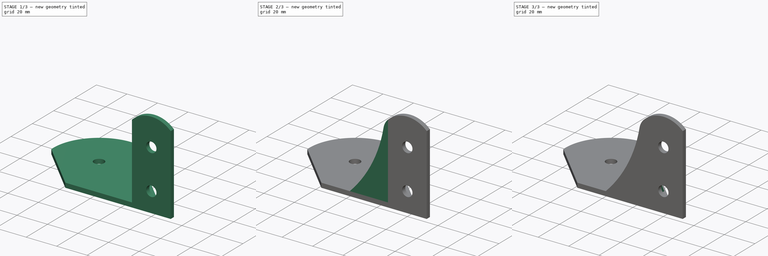
[diagram: build sequence overview — one tinted view per stage of 3, left to right]
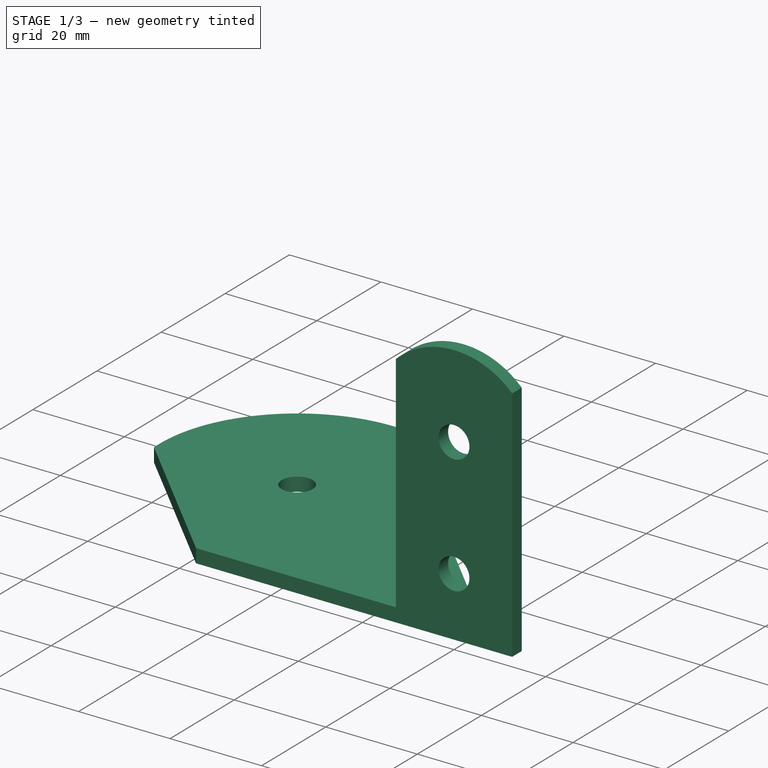
[diagram: stage 1 of 3 — iso view after this stage's code; geometry added in this stage tinted green]
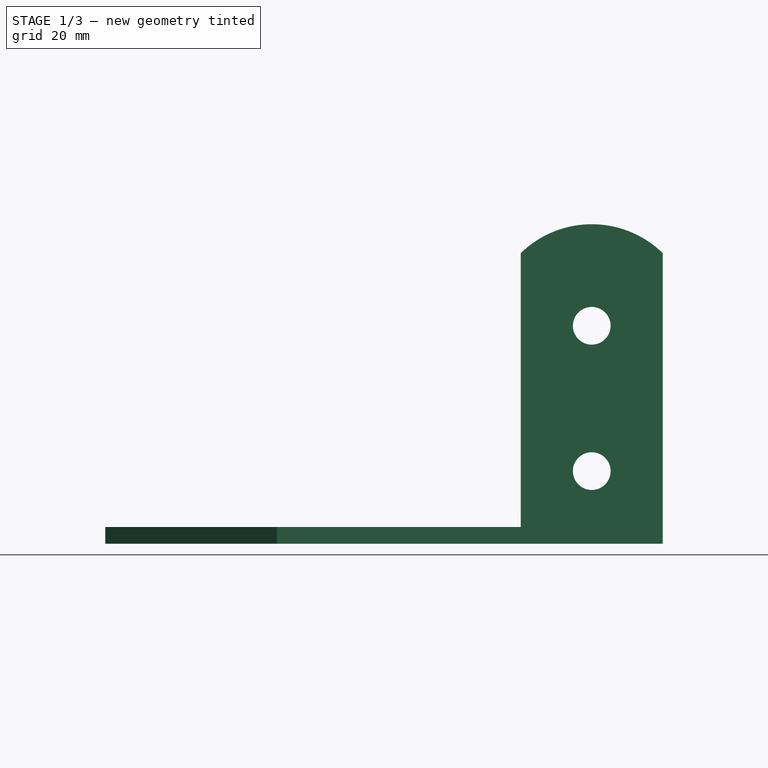
[diagram: stage 1 of 3 — front view after this stage's code; geometry added in this stage tinted green]
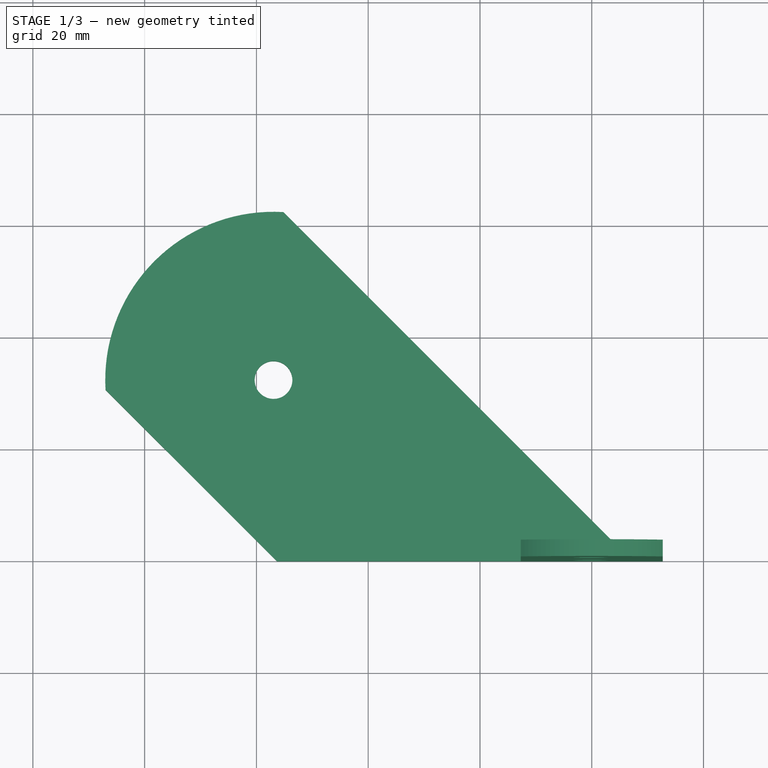
[diagram: stage 1 of 3 — top view after this stage's code; geometry added in this stage tinted green]
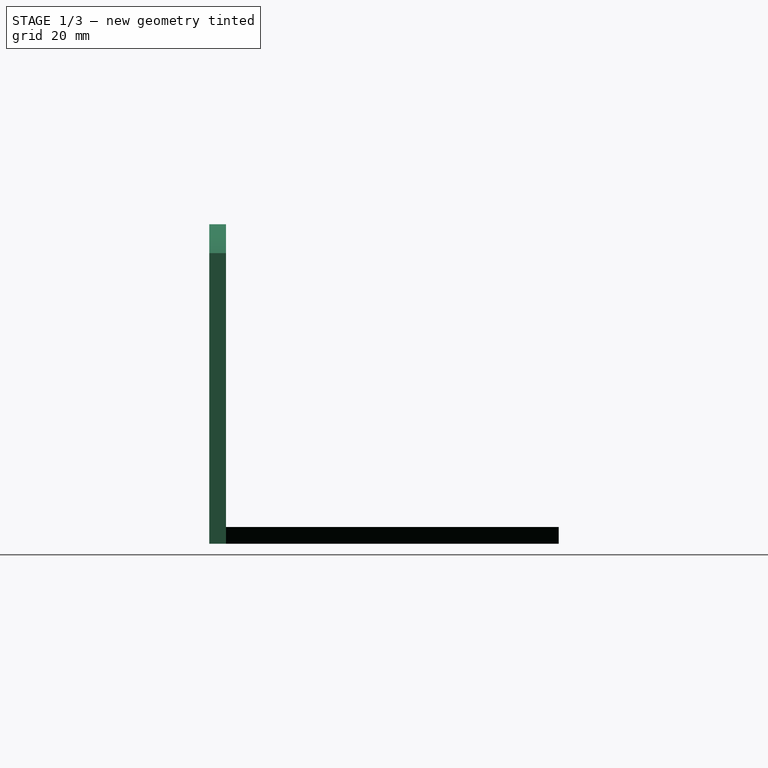
[diagram: stage 1 of 3 — right view after this stage's code; geometry added in this stage tinted green]
FCSTD DOCUMENT  (FreeCAD 0.22R38553 (Git))
Label: webcam_holder
License: All rights reserved
LicenseURL: http://en.wikipedia.org/wiki/All_rights_reserved
objects: Sketcher::SketchObject×5, PartDesign::Pad×5, PartDesign::Body×1
note: 26 computed .brp shape members not serialized (recipe doc carries the construction recipe); baked Part::Feature solids carry a one-line shape summary decoded from their .brp

FEATURE [Sketcher::SketchObject] Sketch
  ArcFitTolerance = 1e-06
  AttachmentSupport = -> [XZ_Plane]
  FullyConstrained = true
  MakeInternals = false
  MapMode = 5
  Placement = pos=(0,0,0) rot=(1,0,0;1.5708rad)
  sketch-geometry (8):
    g0: LineSegment StartX=-12.7 StartY=0 StartZ=0 EndX=12.7 EndY=0 EndZ=0
    g1: LineSegment StartX=12.7 StartY=0 StartZ=0 EndX=12.7 EndY=52 EndZ=0
    g2: LineSegment StartX=-12.7 StartY=52 StartZ=0 EndX=-12.7 EndY=0 EndZ=0
    g3: Circle CenterX=-5e-16 CenterY=39 CenterZ=0 NormalX=0 NormalY=0 NormalZ=1 AngleXU=0 Radius=3.375
    g4: Circle CenterX=0 CenterY=13 CenterZ=0 NormalX=0 NormalY=0 NormalZ=1 AngleXU=0 Radius=3.375
    g5: LineSegment [constr] StartX=-5e-16 StartY=39 StartZ=0 EndX=0 EndY=52 EndZ=0
    g6: LineSegment [constr] StartX=0 StartY=13 StartZ=0 EndX=0 EndY=0 EndZ=0
    g7: ArcOfCircle CenterX=-5e-16 CenterY=39 CenterZ=0 NormalX=0 NormalY=0 NormalZ=1 AngleXU=0 Radius=18.1739 StartAngle=0.797071 EndAngle=2.34452
  constraints (21):
    c: Coincident(g0,g1)
    c: Coincident(g2,g0)
    c: Horizontal(g0)
    c: Vertical(g1)
    c: Vertical(g2)
    c: PointOnObject(g0,g-1)
    c: DistanceY(g1,g1) = 52
    c: DistanceX(g2,g1) = 25.4
    c: Symmetric(g2,g1,g-2)
    c: PointOnObject(g4,g-2)
    c: Equal(g3,g4)
    c: Diameter(g3) = 6.75
    c: DistanceY(g4,g3) = 26
    c: Coincident(g5,g3)
    c: Symmetric(g1,g2,g5)
    c: Coincident(g6,g4)
    c: Coincident(g6,g-1)
    c: Equal(g5,g6)
    c: Coincident(g7,g2)
    c: Coincident(g7,g1)
    c: Coincident(g7,g3)
FEATURE [PartDesign::Pad] Pad
  Direction = (0,-1,2e-16)
  Length = 3
  Length2 = 10
  Placement = pos=(0,0,0) rot=(1,0,0;1.5708rad)
  Profile = -> Sketch
  ReferenceAxis = -> Sketch [N_Axis]
  Reversed = true
  Suppressed = false
  Type = 0
FEATURE [Sketcher::SketchObject] Sketch001
  ArcFitTolerance = 1e-06
  AttachmentSupport = -> [XY_Plane]
  ExternalGeometry = -> [Pad]
  FullyConstrained = true
  MakeInternals = false
  MapMode = 5
  sketch-geometry (11):
    g0: LineSegment StartX=-56.3396 StartY=0 StartZ=0 EndX=-86.9965 EndY=30.6569 EndZ=0
    g1: LineSegment StartX=-55.1767 StartY=62.4767 StartZ=0 EndX=4.3 EndY=3 EndZ=0
    g2: Circle CenterX=-56.9444 CenterY=32.4246 CenterZ=0 NormalX=0 NormalY=0 NormalZ=1 AngleXU=0 Radius=3.375
    g3: LineSegment StartX=-56.3396 StartY=0 StartZ=0 EndX=-12.7 EndY=0 EndZ=0
    g4: LineSegment [constr] StartX=-56.9444 StartY=32.4246 StartZ=0 EndX=-72.8543 EndY=16.5147 EndZ=0
    g5: LineSegment [constr] StartX=-56.9444 StartY=32.4246 StartZ=0 EndX=-41.0345 EndY=48.3345 EndZ=0
    g6: LineSegment StartX=4.3 StartY=3 StartZ=0 EndX=-12.7 EndY=3 EndZ=0
    g7: LineSegment StartX=-12.7 StartY=3 StartZ=0 EndX=-12.7 EndY=0 EndZ=0
    g8: LineSegment [constr] StartX=-49.5198 StartY=-6.81981 StartZ=0 EndX=-17.7 EndY=25 EndZ=0
    g9: ArcOfCircle CenterX=-56.9444 CenterY=32.4246 CenterZ=0 NormalX=0 NormalY=0 NormalZ=1 AngleXU=0 Radius=30.104 StartAngle=1.51204 EndAngle=3.20035
    g10: LineSegment [constr] StartX=-86.9965 StartY=30.6569 StartZ=0 EndX=-55.1767 EndY=62.4767 EndZ=0
  constraints (31):
    c: PointOnObject(g0,g-1)
    c: PointOnObject(g1,g-4)
    c: Parallel(g1,g0)
    c: Coincident(g3,g0)
    c: Angle(g-4,g1) = 2.35619
    c: Coincident(g4,g2)
    c: PointOnObject(g4,g0)
    c: Coincident(g5,g2)
    c: PointOnObject(g5,g1)
    c: Perpendicular(g1,g5)
    c: Parallel(g5,g4)
    c: Equal(g5,g4)
    c: Distance(g0,g1) = 45
    c: Coincident(g3,g-3)
    c: Coincident(g6,g1)
    c: Coincident(g6,g-4)
    c: Coincident(g7,g6)
    c: Coincident(g7,g3)
    c: PointOnObject(g8,g0)
    c: PointOnObject(g8,g1)
    c: Parallel(g4,g8)
    c: Distance(g2,g8) = 33
    c: DistanceY(g3,g8) = 25
    c: DistanceX(g8,g6) = 5
    c: Diameter(g2) = 6.75
    c: Coincident(g9,g0)
    c: Coincident(g9,g1)
    c: Coincident(g10,g0)
    c: Coincident(g10,g1)
    c: Coincident(g9,g2)
    c: Distance(g2,g10) = 20
FEATURE [PartDesign::Pad] Pad001
  BaseFeature = -> Pad
  Direction = (0,0,1)
  Length = 3
  Length2 = 10
  Placement = pos=(0,0,0) rot=(1,0,0;1.5708rad)
  Profile = -> Sketch001
  ReferenceAxis = -> Sketch001 [N_Axis]
  Suppressed = false
  Type = 0
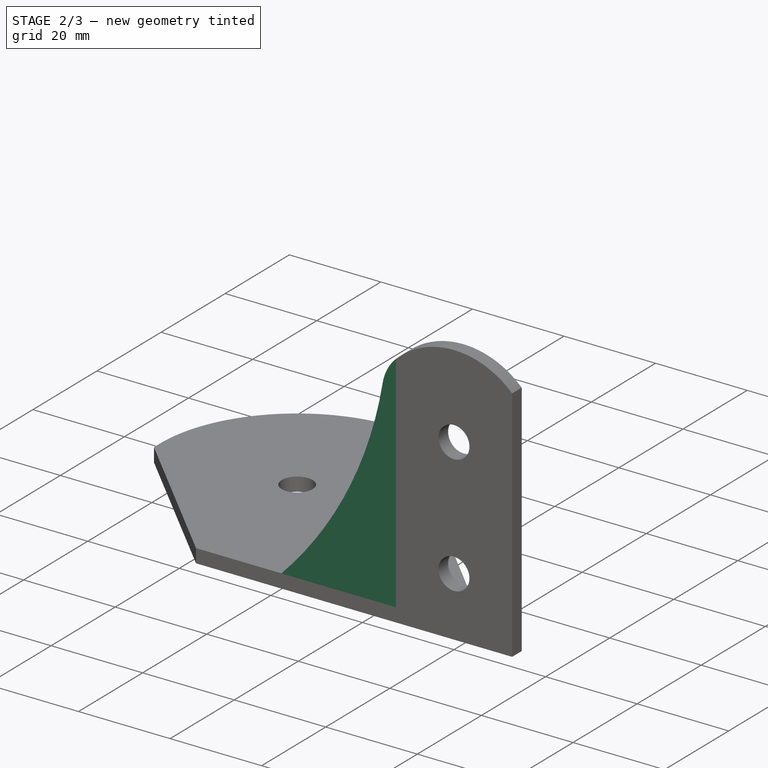
[diagram: stage 2 of 3 — iso view after this stage's code; geometry added in this stage tinted green]
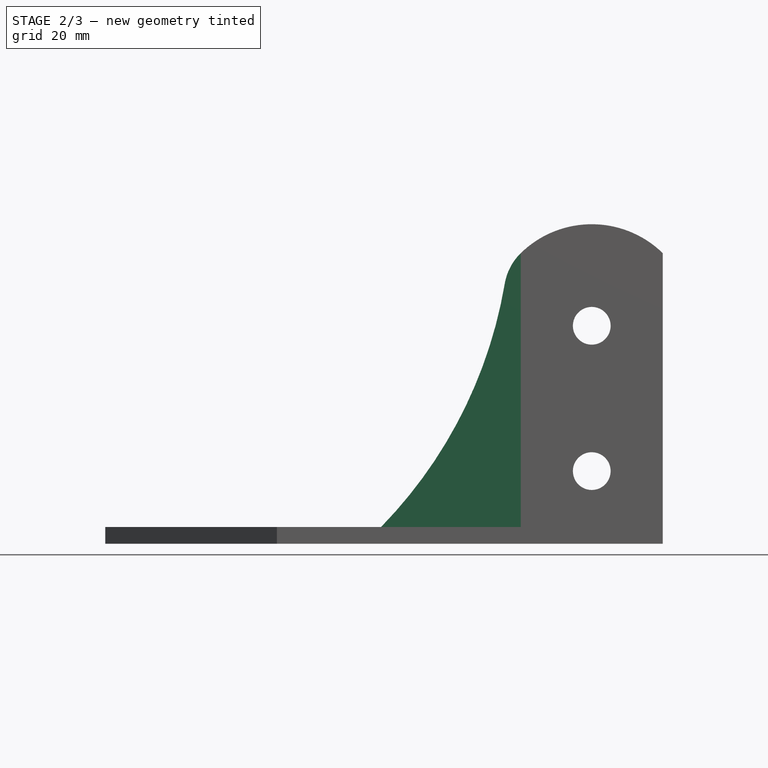
[diagram: stage 2 of 3 — front view after this stage's code; geometry added in this stage tinted green]
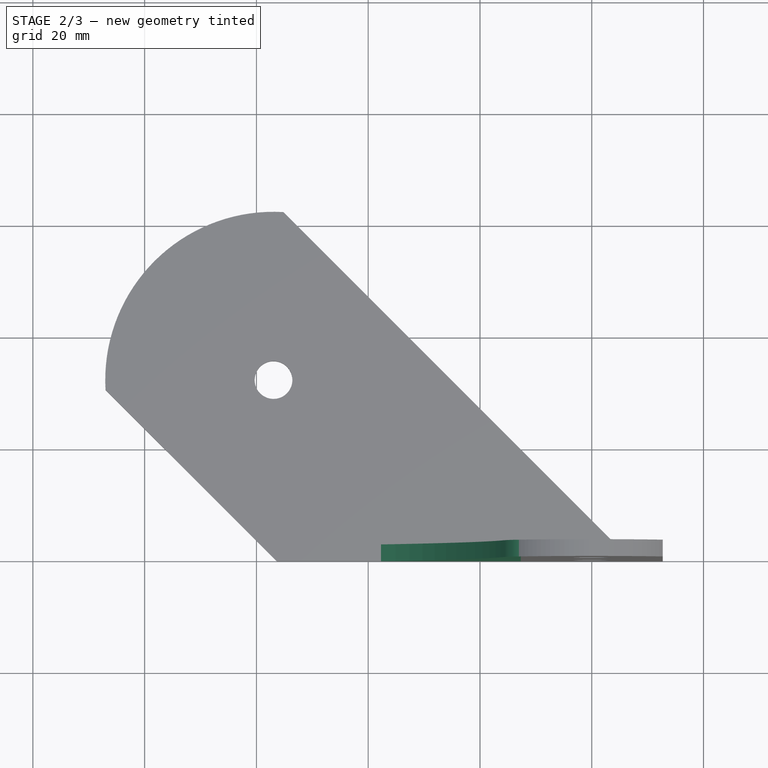
[diagram: stage 2 of 3 — top view after this stage's code; geometry added in this stage tinted green]
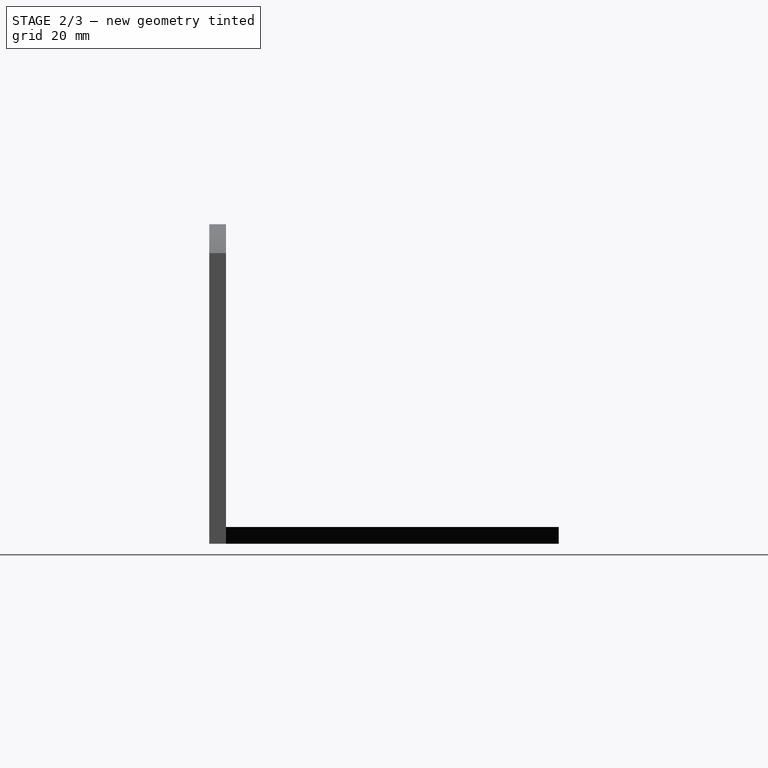
[diagram: stage 2 of 3 — right view after this stage's code; geometry added in this stage tinted green]
FEATURE [Sketcher::SketchObject] Sketch002
  ArcFitTolerance = 1e-06
  AttachmentSupport = -> [XZ_Plane]
  ExternalGeometry = -> [Pad001]
  FullyConstrained = true
  MakeInternals = false
  MapMode = 5
  Placement = pos=(0,0,0) rot=(1,0,0;1.5708rad)
  sketch-geometry (4):
    g0: LineSegment StartX=-12.7 StartY=3 StartZ=0 EndX=-12.7 EndY=52 EndZ=0
    g1: ArcOfCircle CenterX=-5.71196 CenterY=44.8469 CenterZ=0 NormalX=0 NormalY=0 NormalZ=1 AngleXU=0 Radius=10 StartAngle=2.34452 EndAngle=2.97347
    g2: ArcOfCircle CenterX=-96.4148 CenterY=60.2413 CenterZ=0 NormalX=0 NormalY=0 NormalZ=1 AngleXU=0 Radius=82 StartAngle=5.51049 EndAngle=6.11506
    g3: LineSegment StartX=-12.7 StartY=3 StartZ=0 EndX=-37.7 EndY=3 EndZ=0
  constraints (12):
    c: Coincident(g0,g-3)
    c: Vertical(g0)
    c: Coincident(g1,g0)
    c: Tangent(g2,g1) = 1.5708
    c: Tangent(g1,g-5)
    c: Radius(g1) = 10
    c: Radius(g2) = 82
    c: Coincident(g3,g0)
    c: PointOnObject(g3,g-4)
    c: Horizontal(g3)
    c: Coincident(g2,g3)
    c: DistanceX(g3,g3) = 25
FEATURE [PartDesign::Pad] Pad002
  BaseFeature = -> Pad001
  Direction = (0,-1,2e-16)
  Length = 3
  Length2 = 10
  Placement = pos=(0,0,0) rot=(1,0,0;1.5708rad)
  Profile = -> Sketch002
  ReferenceAxis = -> Sketch002 [N_Axis]
  Reversed = true
  Suppressed = false
  Type = 0
  expr: Length = Pad.Length
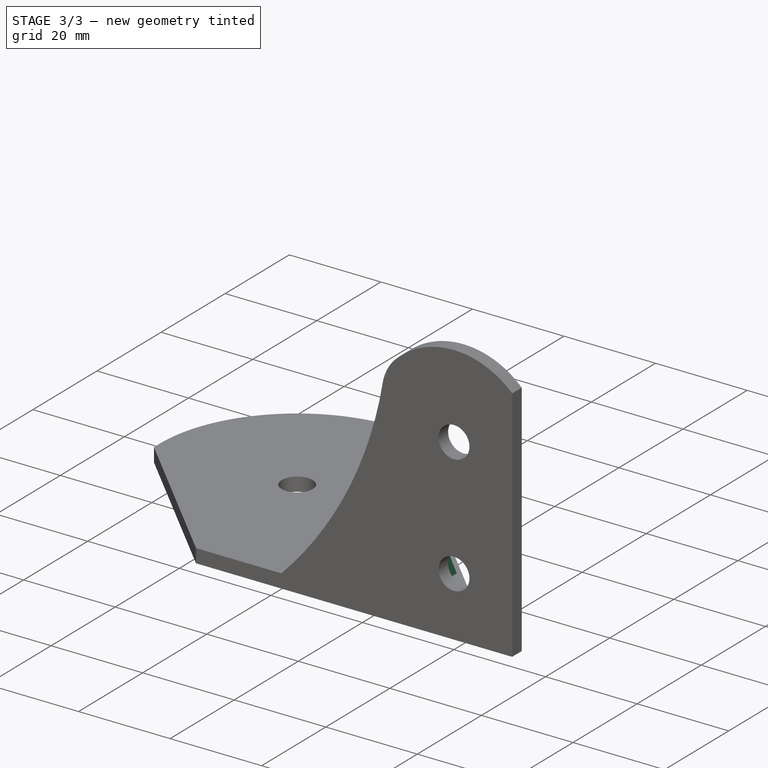
[diagram: stage 3 of 3 — iso view after this stage's code; geometry added in this stage tinted green]
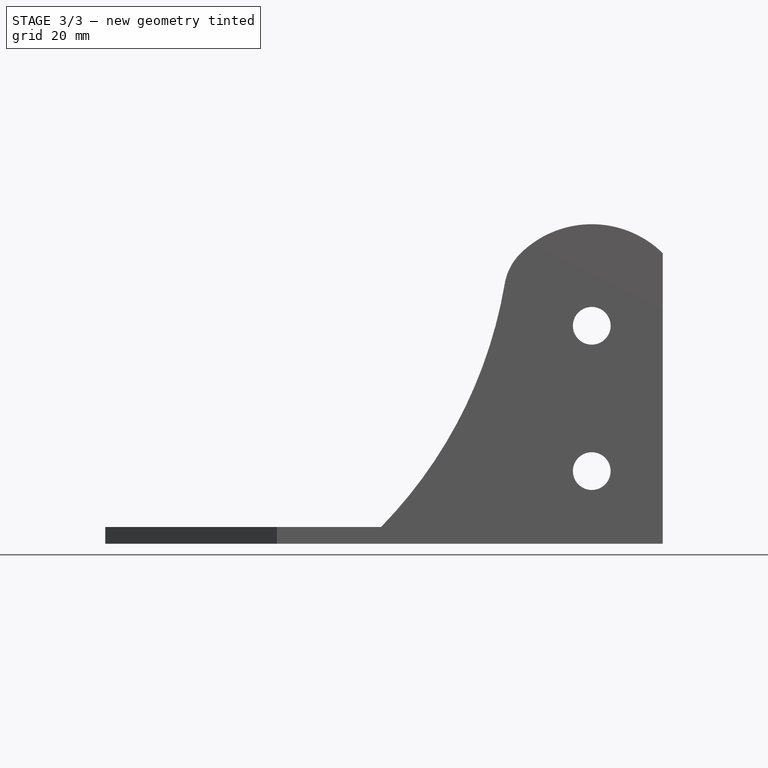
[diagram: stage 3 of 3 — front view after this stage's code; geometry added in this stage tinted green]
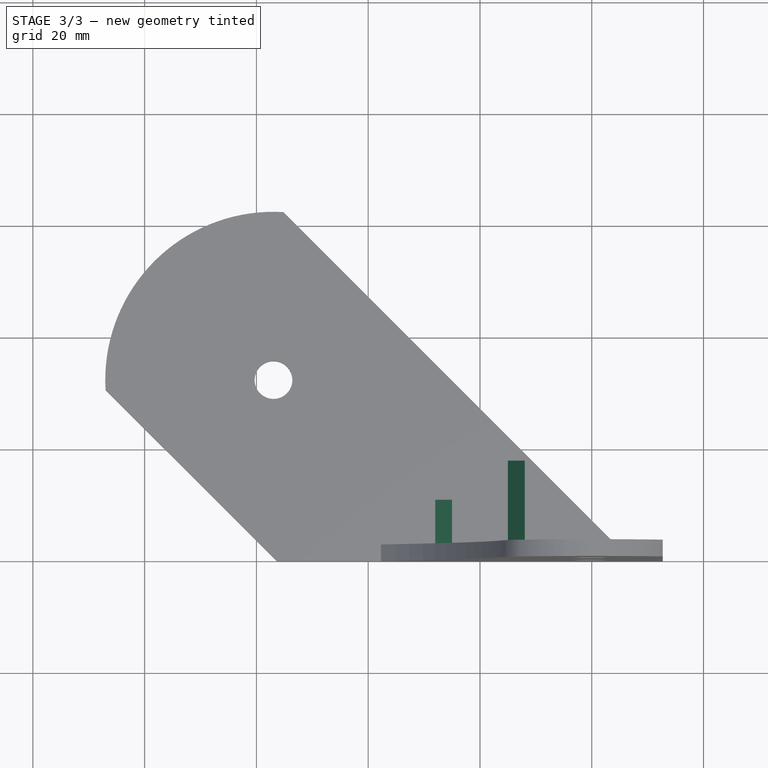
[diagram: stage 3 of 3 — top view after this stage's code; geometry added in this stage tinted green]
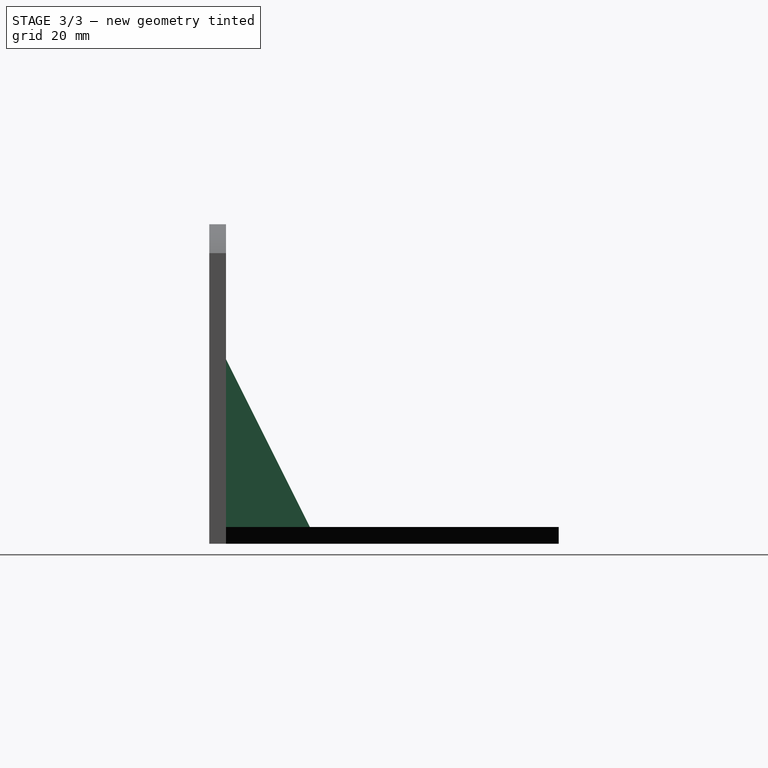
[diagram: stage 3 of 3 — right view after this stage's code; geometry added in this stage tinted green]
FEATURE [Sketcher::SketchObject] Sketch003
  ArcFitTolerance = 1e-06
  AttachmentOffset = pos=(0,0,-15) rot=(0,0,1;0rad)
  AttachmentSupport = -> [YZ_Plane]
  ExternalGeometry = -> [Pad002]
  FullyConstrained = true
  MakeInternals = false
  MapMode = 5
  Placement = pos=(-15,0,0) rot=(0.57735,0.57735,0.57735;2.0944rad)
  sketch-geometry (3):
    g0: LineSegment StartX=3 StartY=3 StartZ=0 EndX=3 EndY=33 EndZ=0
    g1: LineSegment StartX=3 StartY=3 StartZ=0 EndX=18 EndY=3 EndZ=0
    g2: LineSegment StartX=3 StartY=33 StartZ=0 EndX=18 EndY=3 EndZ=0
  constraints (8):
    c: Coincident(g0,g-4)
    c: PointOnObject(g0,g-3)
    c: Coincident(g1,g0)
    c: PointOnObject(g1,g-4)
    c: Coincident(g2,g0)
    c: Coincident(g2,g1)
    c: DistanceX(g1,g1) = 15
    c: DistanceY(g0,g0) = 30
FEATURE [PartDesign::Pad] Pad003
  BaseFeature = -> Pad002
  Direction = (1,0,0)
  Length = 3
  Length2 = 10
  Placement = pos=(0,0,0) rot=(1,0,0;1.5708rad)
  Profile = -> Sketch003
  ReferenceAxis = -> Sketch003 [N_Axis]
  Suppressed = false
  Type = 0
FEATURE [Sketcher::SketchObject] Sketch004
  ArcFitTolerance = 1e-06
  AttachmentOffset = pos=(0,0,-25) rot=(0,0,1;0rad)
  AttachmentSupport = -> [YZ_Plane]
  ExternalGeometry = -> [Pad003]
  FullyConstrained = true
  MakeInternals = false
  MapMode = 5
  Placement = pos=(-25,0,0) rot=(0.57735,0.57735,0.57735;2.0944rad)
  sketch-geometry (3):
    g0: LineSegment StartX=3 StartY=3 StartZ=0 EndX=3 EndY=11 EndZ=0
    g1: LineSegment StartX=3 StartY=3 StartZ=0 EndX=11 EndY=3 EndZ=0
    g2: LineSegment StartX=11 StartY=3 StartZ=0 EndX=3 EndY=11 EndZ=0
  constraints (8):
    c: Coincident(g0,g-4)
    c: PointOnObject(g0,g-3)
    c: Coincident(g1,g0)
    c: PointOnObject(g1,g-4)
    c: Coincident(g2,g1)
    c: Coincident(g2,g0)
    c: Equal(g0,g1)
    c: DistanceX(g1,g1) = 8
FEATURE [PartDesign::Pad] Pad004
  BaseFeature = -> Pad003
  Direction = (1,0,0)
  Length = 3
  Length2 = 10
  Placement = pos=(0,0,0) rot=(1,0,0;1.5708rad)
  Profile = -> Sketch004
  ReferenceAxis = -> Sketch004 [N_Axis]
  Reversed = true
  Suppressed = false
  Type = 0
FEATURE [PartDesign::Body] Body
  AllowCompound = false
  Group = -> [Sketch,Pad,Sketch001,Pad001,Sketch002,Pad002,Sketch003,Pad003,Sketch004,Pad004]
  Origin = -> Origin
  Tip = -> Pad004
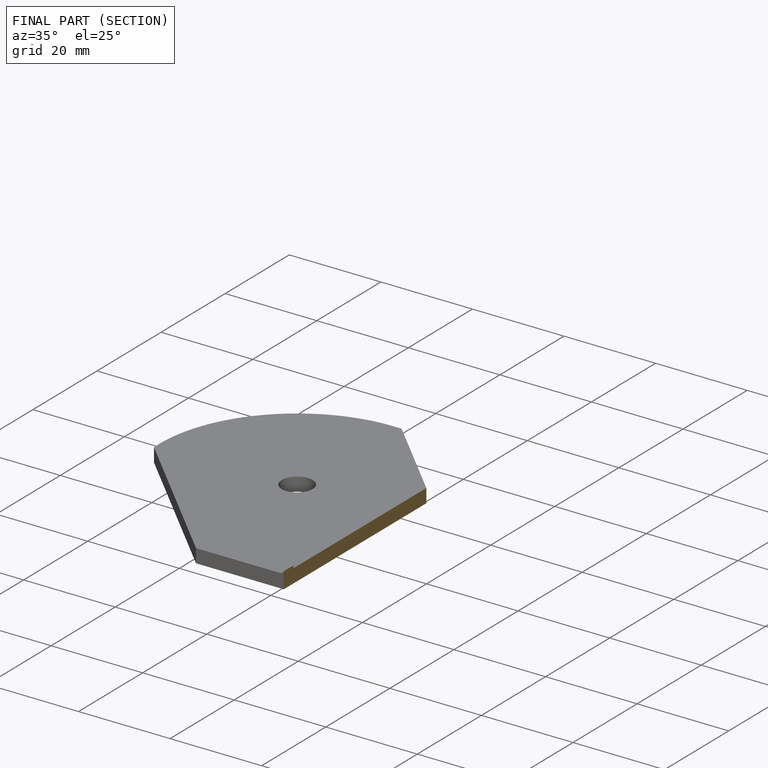
[diagram: finished part — half-section view (interior)]
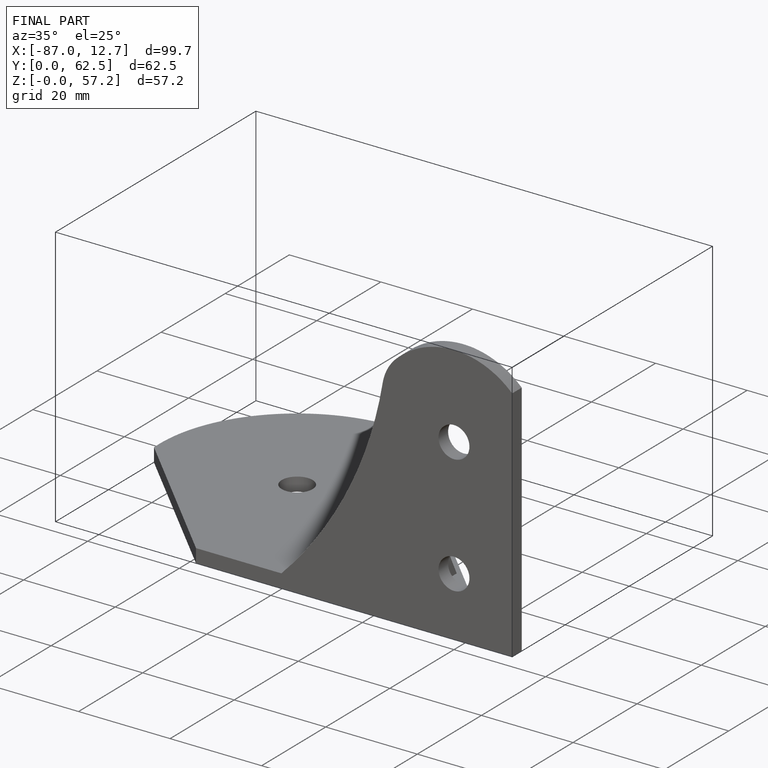
[diagram: finished part — iso view with bounding-box wireframe]
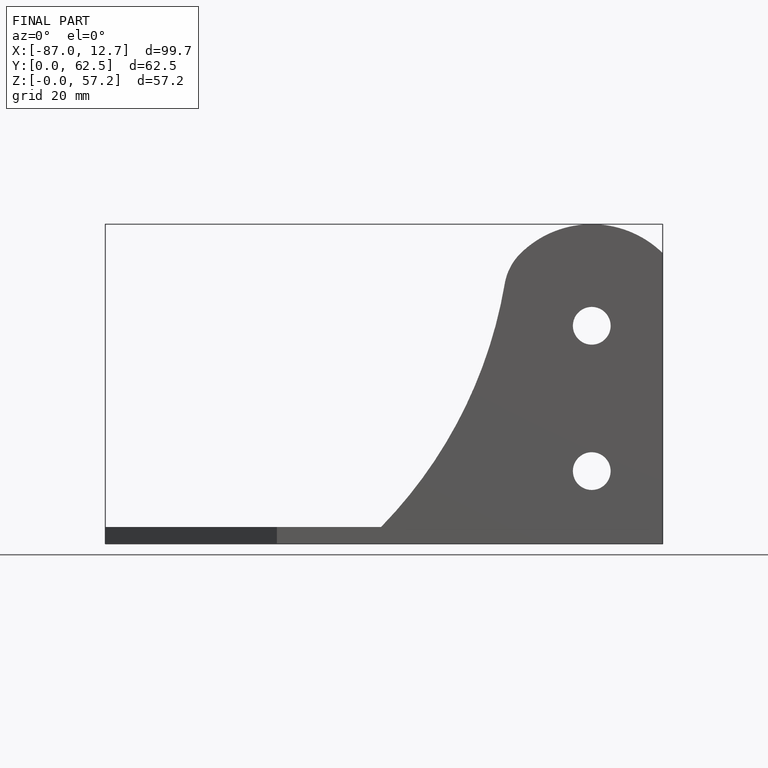
[diagram: finished part — front view with bounding-box wireframe]
